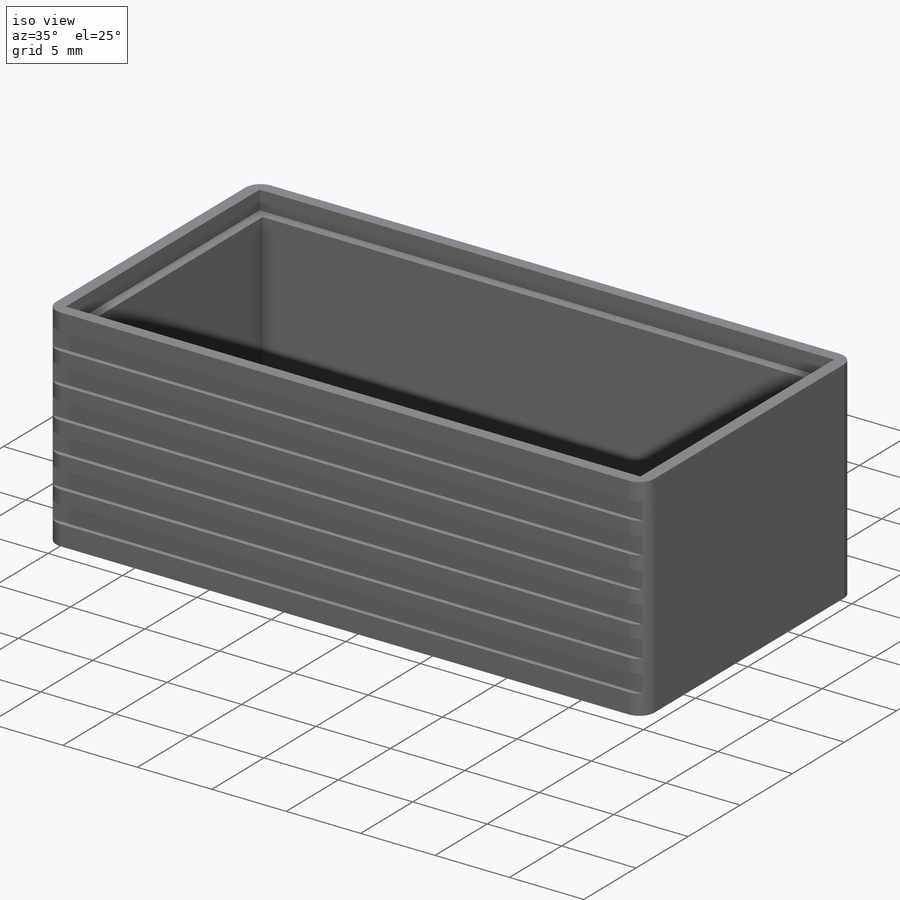
[diagram: iso view]
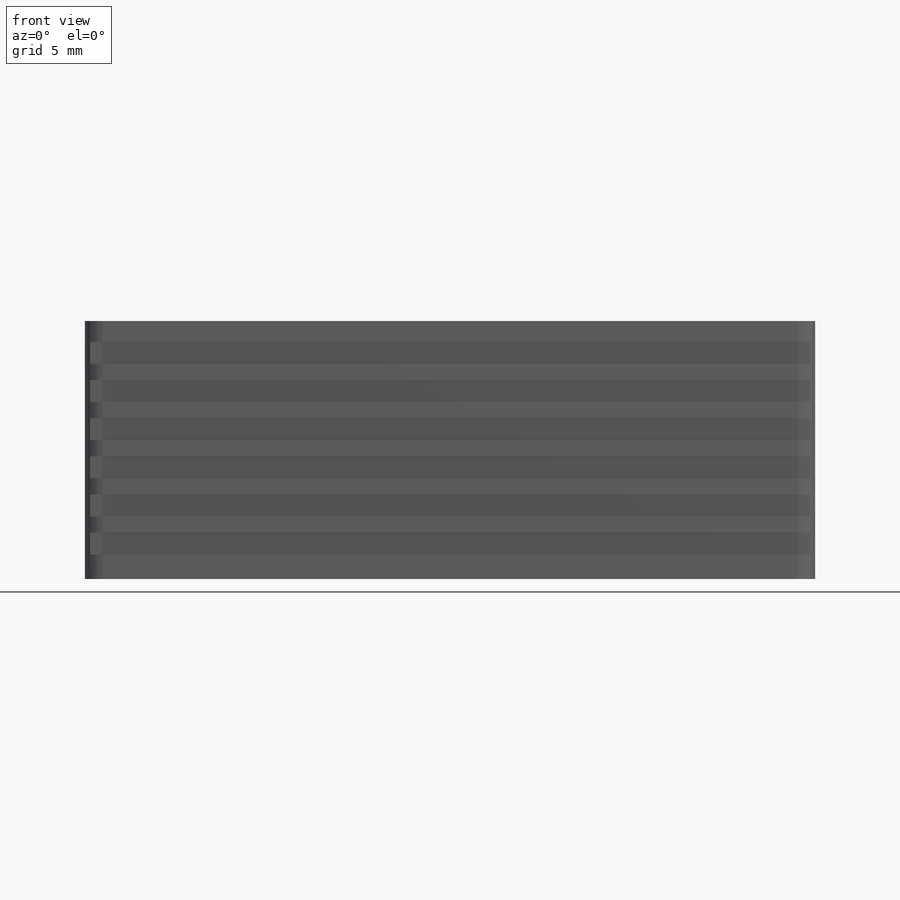
[diagram: front view]
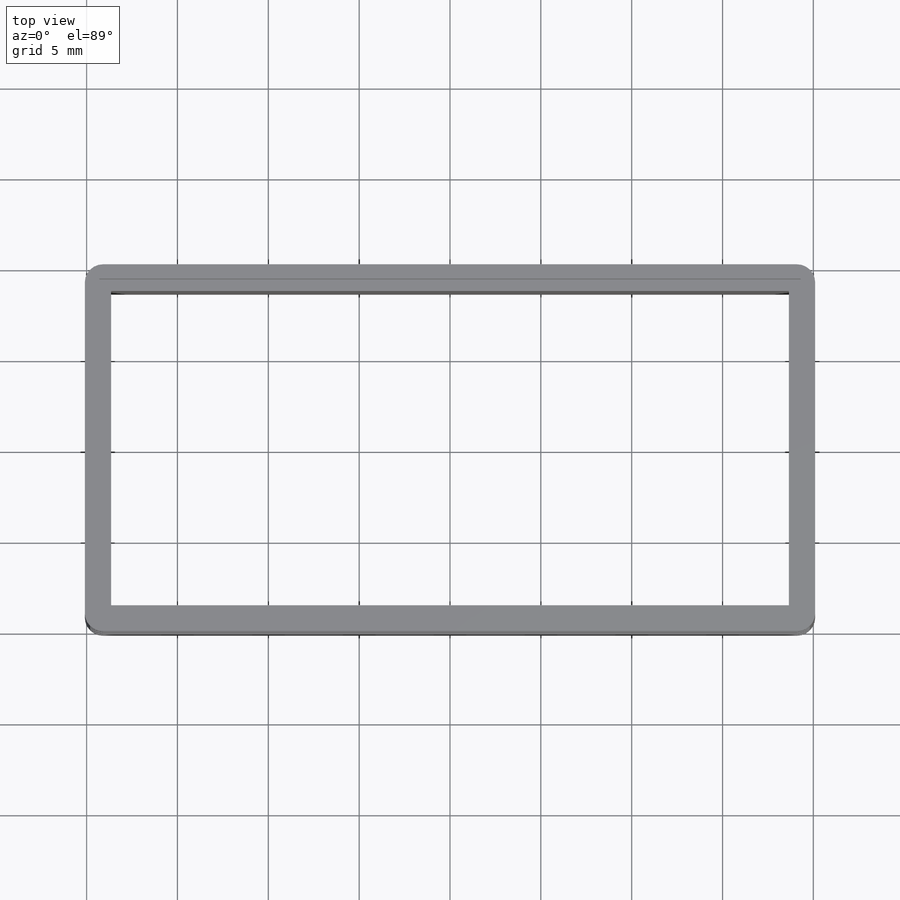
[diagram: top view]
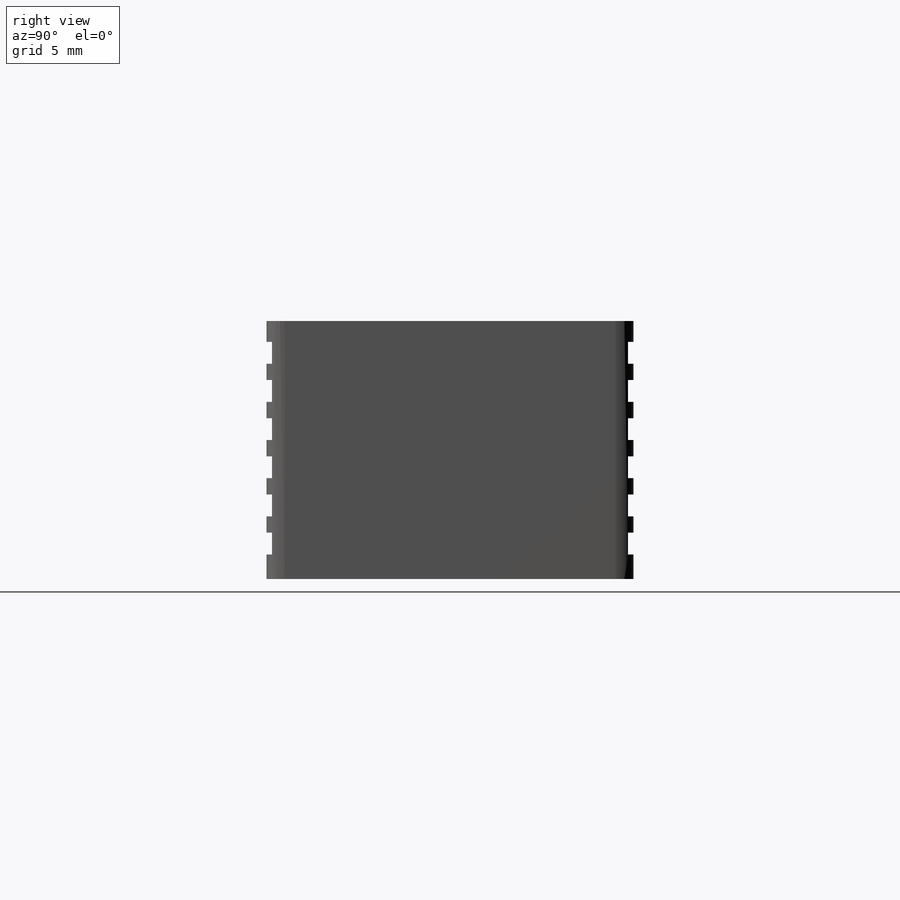
[diagram: right view]
SOLIDWORKS PART (.sldprt)
format: sldprt  version: not decoded by parser v0  size: 308,736 bytes
history: native  units: mm
features: sketch x4, cut_extrude x3, mirror x2, material x1, extrude x1, fillet x1, pattern_linear x1 (+16 scaffold rows collapsed)
feature tree (29):
  scaffold x16  (default folders/planes/origin — collapsed)
  material  "Material <not specified>"
  sketch  "Sketch1"  dims[D1=20.2mm D2=40.2mm]
  extrude  "Boss-Extrude1"  Depth=7.1mm
  fillet  "Fillet1"  Radius=1mm
  sketch  "Sketch2"  dims[D1=0.8mm]
  cut_extrude  "Cut-Extrude1"  Depth=1.25mm
  sketch  "Sketch3"  dims[D1=0.65mm]
  cut_extrude  "Cut-Extrude2"  [1 undecoded]
  mirror  "Mirror1"
  sketch  "Sketch4"  dims[D1=1.15mm D2=0.3mm D3=1.2mm]
  cut_extrude  "Cut-Extrude3"  [1 undecoded]
  pattern_linear  "LPattern1"  Count1=6 Count2=1 Spacing1=2.1mm Spacing2=10mm
  mirror  "Mirror2"
decode coverage: 8 of 12 modeling features carry decoded parameters
note: 2 parameter values undecoded
note: suppression state not decoded; provenance and decode notes live in map.json
